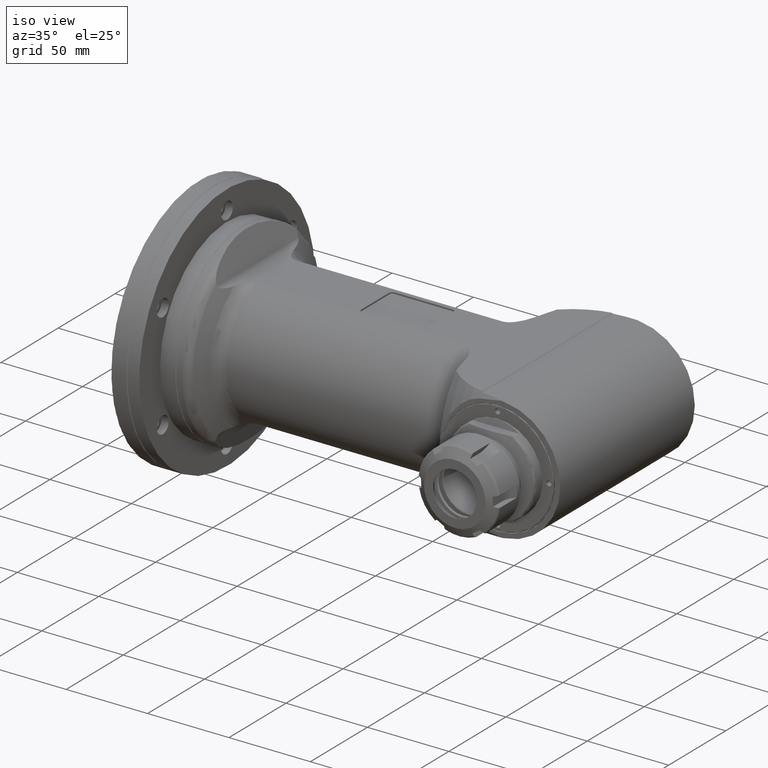
[diagram: clean part render]
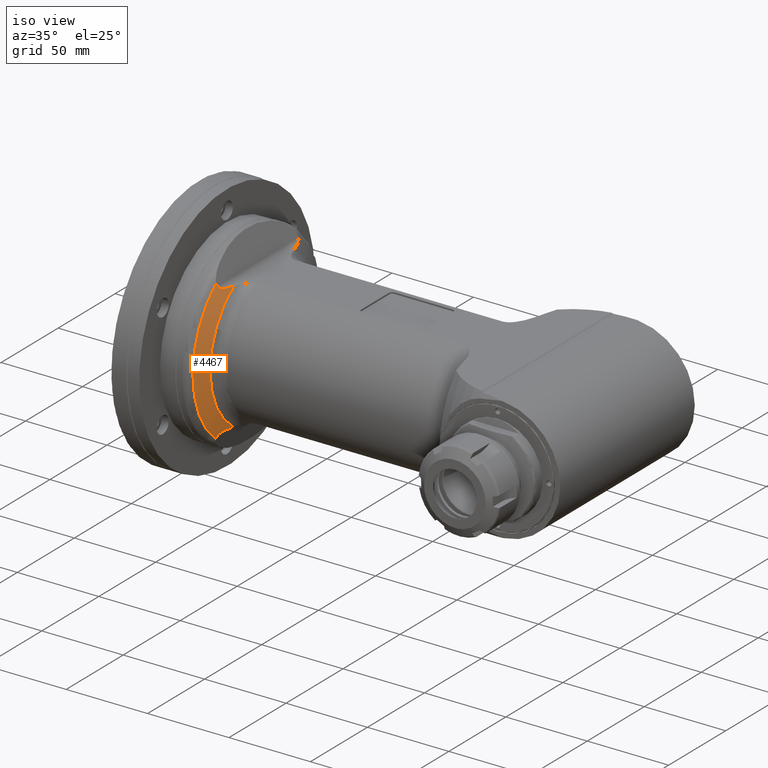
[diagram: same view with one face highlighted and labeled with its STEP entity id]
A machine part, iso view. The second image highlights one B-rep face of the part: STEP entity #4467.
In plain terms, the highlighted conical surface has half-angle 65 deg.
Its self-contained STEP definition (entity closure, byte-faithful):
#197=CONICAL_SURFACE('',#4806,51.61607260739,1.13446401379631);
#355=B_SPLINE_CURVE_WITH_KNOTS('',3,(#6926,#6927,#6928,#6929,#6930,#6931,
#6932,#6933,#6934,#6935,#6936,#6937,#6938,#6939,#6940,#6941),
 .UNSPECIFIED.,.F.,.F.,(4,2,2,2,2,2,2,4),(9.62354896462584,9.68754036288442,
10.1425327277888,10.370028910241,10.4837770014671,10.5975250926932,10.6491508740843,
10.681904605808),.UNSPECIFIED.);
#361=B_SPLINE_CURVE_WITH_KNOTS('',3,(#7018,#7019,#7020,#7021,#7022,#7023,
#7024,#7025,#7026,#7027,#7028,#7029,#7030,#7031,#7032,#7033),
 .UNSPECIFIED.,.F.,.F.,(4,2,2,2,2,2,2,4),(-6.93836942799819,-6.9123866401719,
-6.85344447570212,-6.6874332971283,-6.60047429393899,-6.43710130156846,
-6.09157344314227,-5.93318663708067),.UNSPECIFIED.);
#404=FACE_OUTER_BOUND('',#693,.T.);
#693=EDGE_LOOP('',(#3030,#3031,#3032,#3033,#3034,#3035));
#1069=CIRCLE('',#4805,103.132248953429);
#1070=CIRCLE('',#4807,47.11905390607);
#1071=CIRCLE('',#4808,56.1130913087);
#1072=CIRCLE('',#4809,103.13224891746);
#1872=VERTEX_POINT('',#6923);
#1873=VERTEX_POINT('',#6925);
#1878=VERTEX_POINT('',#6991);
#1879=VERTEX_POINT('',#7012);
#1880=VERTEX_POINT('',#7014);
#1881=VERTEX_POINT('',#7016);
#2329=EDGE_CURVE('',#1873,#1872,#355,.T.);
#2337=EDGE_CURVE('',#1878,#1872,#1069,.T.);
#2338=EDGE_CURVE('',#1873,#1879,#1070,.T.);
#2339=EDGE_CURVE('',#1880,#1878,#1071,.T.);
#2340=EDGE_CURVE('',#1881,#1880,#1072,.T.);
#2341=EDGE_CURVE('',#1881,#1879,#361,.T.);
#3030=ORIENTED_EDGE('',*,*,#2338,.F.);
#3031=ORIENTED_EDGE('',*,*,#2329,.T.);
#3032=ORIENTED_EDGE('',*,*,#2337,.F.);
#3033=ORIENTED_EDGE('',*,*,#2339,.F.);
#3034=ORIENTED_EDGE('',*,*,#2340,.F.);
#3035=ORIENTED_EDGE('',*,*,#2341,.T.);
#4467=ADVANCED_FACE('',(#404),#197,.T.);
#4805=AXIS2_PLACEMENT_3D('',#7010,#5408,#5409);
#4806=AXIS2_PLACEMENT_3D('',#7011,#5410,#5411);
#4807=AXIS2_PLACEMENT_3D('',#7013,#5412,#5413);
#4808=AXIS2_PLACEMENT_3D('',#7015,#5414,#5415);
#4809=AXIS2_PLACEMENT_3D('',#7017,#5416,#5417);
#5408=DIRECTION('center_axis',(0.939692620783974,-1.44062297885424E-9,0.342020143330985));
#5409=DIRECTION('ref_axis',(0.0100879466532356,-0.999564922332435,-0.027716409848207));
#5410=DIRECTION('center_axis',(-1.,0.,0.));
#5411=DIRECTION('ref_axis',(0.,-1.,-1.24006415250859E-8));
#5412=DIRECTION('center_axis',(1.,0.,0.));
#5413=DIRECTION('ref_axis',(0.,-1.,0.));
#5414=DIRECTION('center_axis',(-1.,0.,0.));
#5415=DIRECTION('ref_axis',(0.,-1.,0.));
#5416=DIRECTION('center_axis',(0.939692620797473,-1.44428708413887E-9,-0.342020143293894));
#5417=DIRECTION('ref_axis',(0.00401260073424705,-0.99993117697293,0.011024534134313));
#6923=CARTESIAN_POINT('',(-188.5272482822,-35.58753550919,41.6319194267));
#6925=CARTESIAN_POINT('',(-184.959823853893,-26.4357340879267,39.0045792819483));
#6926=CARTESIAN_POINT('Ctrl Pts',(-184.959823855127,-26.4357340875539,39.0045792853765));
#6927=CARTESIAN_POINT('Ctrl Pts',(-185.015205013026,-26.6435080218233,39.0072315632964));
#6928=CARTESIAN_POINT('Ctrl Pts',(-185.071196146135,-26.8502186719279,39.0110665784283));
#6929=CARTESIAN_POINT('Ctrl Pts',(-185.530136037055,-28.5176639004221,39.0524589034384));
#6930=CARTESIAN_POINT('Ctrl Pts',(-186.009108162048,-30.0867874738775,39.154344250736));
#6931=CARTESIAN_POINT('Ctrl Pts',(-186.781304234601,-32.2656851178169,39.5314861840178));
#6932=CARTESIAN_POINT('Ctrl Pts',(-187.043921009771,-32.955338014839,39.6916608390199));
#6933=CARTESIAN_POINT('Ctrl Pts',(-187.449685810525,-33.9089227727784,40.026451260573));
#6934=CARTESIAN_POINT('Ctrl Pts',(-187.586205938079,-34.2117320341148,40.1531497748424));
#6935=CARTESIAN_POINT('Ctrl Pts',(-187.86898358004,-34.7811012080194,40.4640528789308));
#6936=CARTESIAN_POINT('Ctrl Pts',(-188.014283219425,-35.0512984562977,40.6424287991561));
#6937=CARTESIAN_POINT('Ctrl Pts',(-188.247249948034,-35.3775848937542,41.0207620959665));
#6938=CARTESIAN_POINT('Ctrl Pts',(-188.326473317409,-35.4716032053336,41.1640659153533));
#6939=CARTESIAN_POINT('Ctrl Pts',(-188.445258027646,-35.5635417460057,41.4209631110886));
#6940=CARTESIAN_POINT('Ctrl Pts',(-188.488859050469,-35.5842231247161,41.526445879248));
#6941=CARTESIAN_POINT('Ctrl Pts',(-188.52724828224,-35.5875355091461,41.6319194266869));
#6991=CARTESIAN_POINT('',(-189.1538123689,-35.62530817393,43.35339010656));
#7010=CARTESIAN_POINT('Origin',(-189.567640907871,67.4998429059132,44.4903751072603));
#7011=CARTESIAN_POINT('Origin',(-187.0568181096,0.,0.));
#7012=CARTESIAN_POINT('',(-184.959823658241,-26.4357331033119,-39.004579442415));
#7013=CARTESIAN_POINT('Origin',(-184.9598238503,0.,0.));
#7014=CARTESIAN_POINT('',(-189.153812369,-35.62530817403,-43.35339010692));
#7015=CARTESIAN_POINT('Origin',(-189.1538123689,0.,0.));
#7016=CARTESIAN_POINT('',(-188.5272482822,-35.58753550919,-41.6319194267));
#7017=CARTESIAN_POINT('Origin',(-189.567640907032,67.4998428699614,-44.4903751064085));
#7018=CARTESIAN_POINT('Ctrl Pts',(-188.52724828224,-35.5875355091461,-41.6319194266869));
#7019=CARTESIAN_POINT('Ctrl Pts',(-188.496754198529,-35.5849043513076,-41.5481376202665));
#7020=CARTESIAN_POINT('Ctrl Pts',(-188.463239953422,-35.5714998208454,-41.4649472446903));
#7021=CARTESIAN_POINT('Ctrl Pts',(-188.347779257753,-35.4960565908069,-41.2033393430834));
#7022=CARTESIAN_POINT('Ctrl Pts',(-188.257556738364,-35.3920202851013,-41.0375001168344));
#7023=CARTESIAN_POINT('Ctrl Pts',(-187.940658768998,-34.9481821882242,-40.5228641676649));
#7024=CARTESIAN_POINT('Ctrl Pts',(-187.676122796893,-34.4097166076523,-40.238204861501));
#7025=CARTESIAN_POINT('Ctrl Pts',(-187.353971047956,-33.6880217634878,-39.9442350011421));
#7026=CARTESIAN_POINT('Ctrl Pts',(-187.22512991288,-33.3819886416395,-39.8406319991836));
#7027=CARTESIAN_POINT('Ctrl Pts',(-186.923808391767,-32.6353187921274,-39.6215896159702));
#7028=CARTESIAN_POINT('Ctrl Pts',(-186.69958917637,-32.0354735210178,-39.4913469641559));
#7029=CARTESIAN_POINT('Ctrl Pts',(-186.14065008232,-30.4571784029929,-39.2190823705844));
#7030=CARTESIAN_POINT('Ctrl Pts',(-185.725501339217,-29.1440411170739,-39.1026607033288));
#7031=CARTESIAN_POINT('Ctrl Pts',(-185.258629631901,-27.5322702331406,-39.0273629623975));
#7032=CARTESIAN_POINT('Ctrl Pts',(-185.107713616345,-26.9905733186049,-39.0116619148149));
#7033=CARTESIAN_POINT('Ctrl Pts',(-184.959823597663,-26.4357331216208,-39.0045792730461));